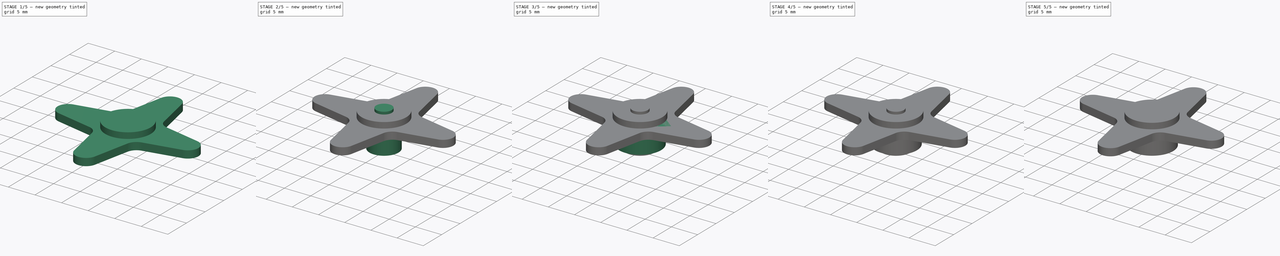
[diagram: build sequence overview — one tinted view per stage of 5, left to right]
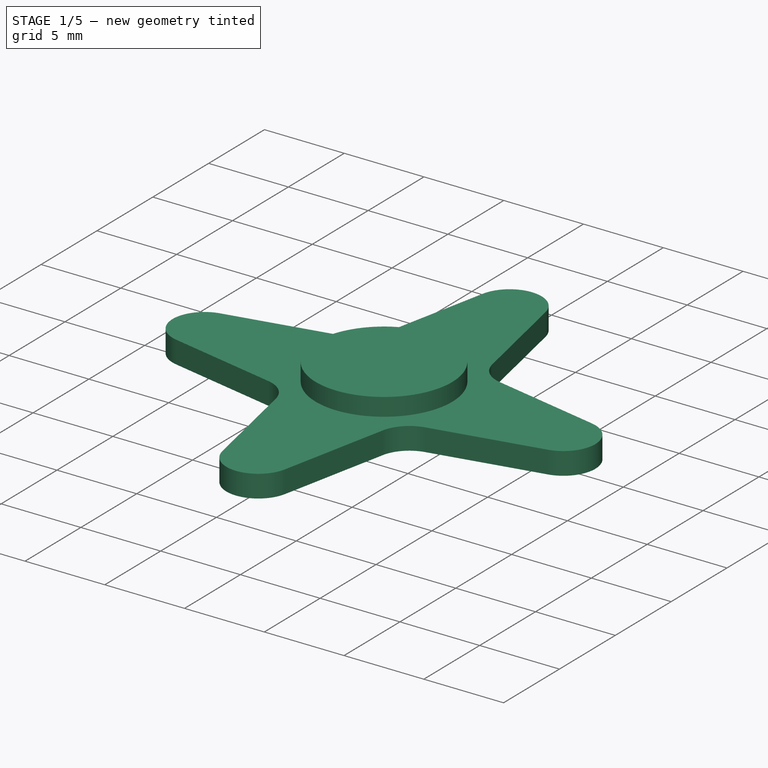
[diagram: stage 1 of 5 — iso view after this stage's code; geometry added in this stage tinted green]
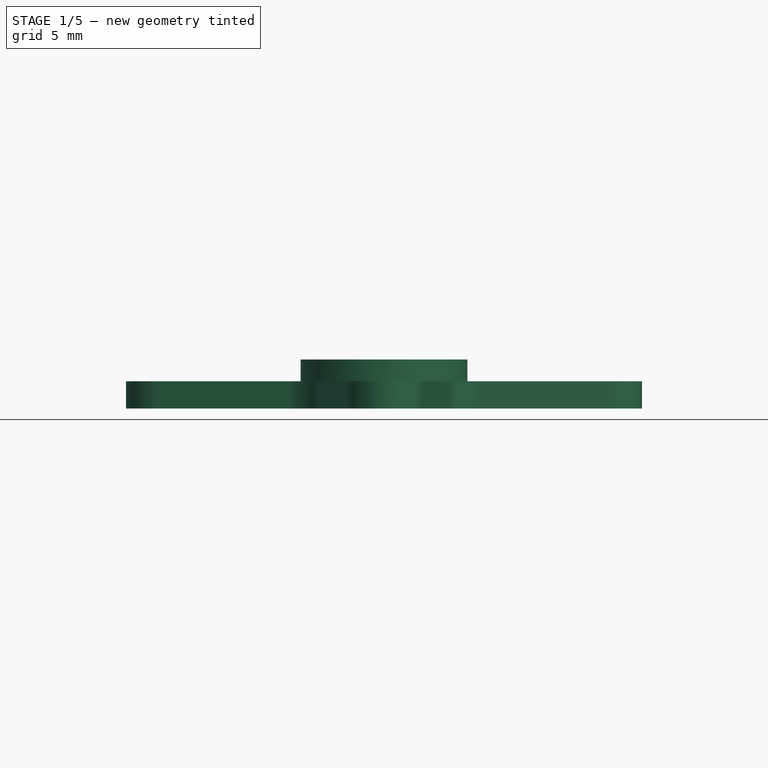
[diagram: stage 1 of 5 — front view after this stage's code; geometry added in this stage tinted green]
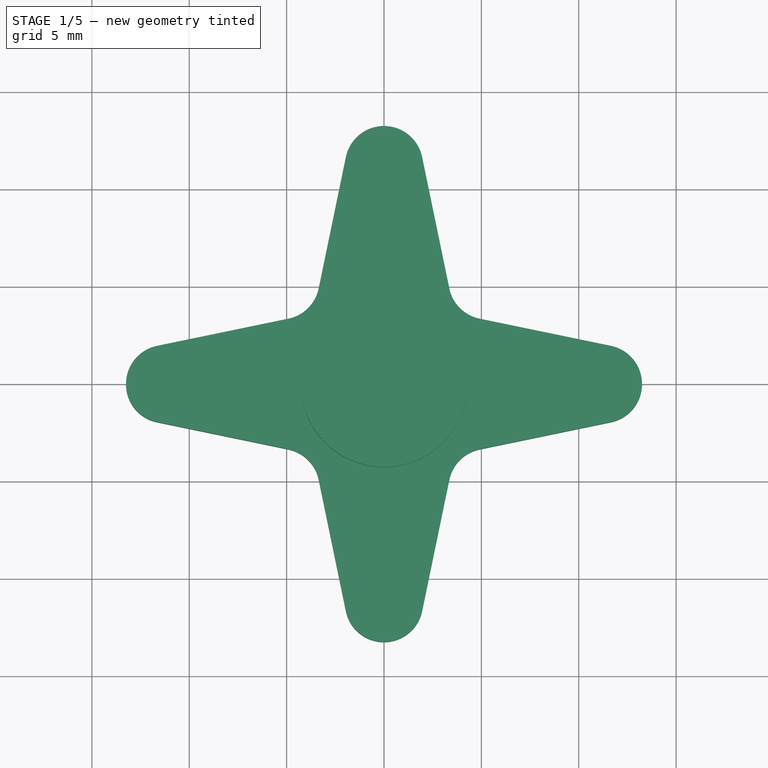
[diagram: stage 1 of 5 — top view after this stage's code; geometry added in this stage tinted green]
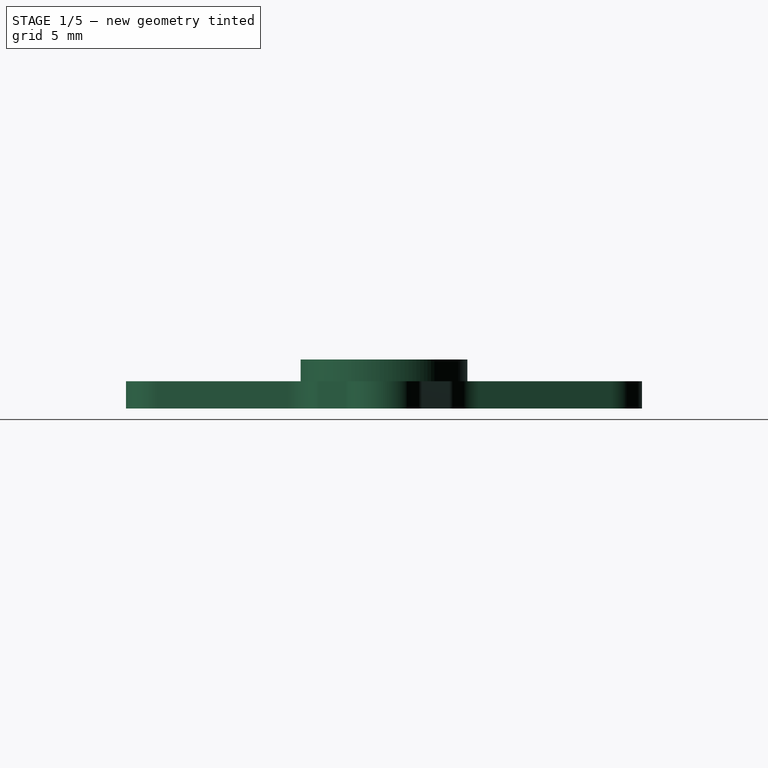
[diagram: stage 1 of 5 — right view after this stage's code; geometry added in this stage tinted green]
FCSTD DOCUMENT  (FreeCAD 0.17R13541 (Git))
Label: Soporte 4 palas servo HD1160A
License: CreativeCommons Attribution
LicenseURL: http://creativecommons.org/licenses/by/4.0/
objects: Part::Cylinder×6, Part::MultiFuse×4, Sketcher::SketchObject×2, PartDesign::Pad×2, PartDesign::Body×2, Part::Cut×2, Part::Feature×2, Part::FeaturePython×1, Part::Fillet×1
note: 24 computed .brp shape members not serialized (recipe doc carries the construction recipe); baked Part::Feature solids carry a one-line shape summary decoded from their .brp

FEATURE [Part::Feature] Fillet001  label="Soporte 4 palas servo HD1160"
  shape: bbox 26 x 26 x 5.52 mm, 39 faces (baked)
FEATURE [Sketcher::SketchObject] Sketch  label="perfil 4 palas + 0.25 extra contorno"
  MapMode = 5
  Support = -> [XY_Plane]
  sketch-geometry (17):
    g0: Circle [constr] CenterX=0 CenterY=0 CenterZ=0 NormalX=0 NormalY=0 NormalZ=1 AngleXU=0 Radius=4.28
    g1: ArcOfCircle CenterX=11.25 CenterY=0 CenterZ=0 NormalX=0 NormalY=0 NormalZ=1 AngleXU=0 Radius=2 StartAngle=4.91647 EndAngle=7.6499
    g2: ArcOfCircle CenterX=0 CenterY=11.25 CenterZ=0 NormalX=0 NormalY=0 NormalZ=1 AngleXU=0 Radius=2 StartAngle=0.204086 EndAngle=2.93751
    g3: ArcOfCircle CenterX=-11.25 CenterY=0 CenterZ=0 NormalX=0 NormalY=0 NormalZ=1 AngleXU=0 Radius=2 StartAngle=1.77488 EndAngle=4.50831
    g4: ArcOfCircle CenterX=0 CenterY=-11.25 CenterZ=0 NormalX=0 NormalY=0 NormalZ=1 AngleXU=0 Radius=2 StartAngle=3.34567 EndAngle=6.0791
    g5: LineSegment StartX=1.95849 StartY=11.6553 StartZ=0 EndX=3.35492 EndY=4.90808 EndZ=0
    g6: LineSegment StartX=11.6553 StartY=1.95849 StartZ=0 EndX=4.90808 EndY=3.35492 EndZ=0
    g7: LineSegment StartX=-3.35492 StartY=4.90808 StartZ=0 EndX=-1.95849 EndY=11.6553 EndZ=0
    g8: LineSegment StartX=-4.90808 StartY=3.35492 StartZ=0 EndX=-11.6553 EndY=1.9585 EndZ=0
    g9: LineSegment StartX=-11.6553 StartY=-1.9585 StartZ=0 EndX=-4.90808 EndY=-3.35492 EndZ=0
    g10: LineSegment StartX=-1.9585 StartY=-11.6553 StartZ=0 EndX=-3.35492 EndY=-4.90808 EndZ=0
    g11: LineSegment StartX=1.9585 StartY=-11.6553 StartZ=0 EndX=3.35492 EndY=-4.90808 EndZ=0
    g12: LineSegment StartX=11.6553 StartY=-1.9585 StartZ=0 EndX=4.90808 EndY=-3.35492 EndZ=0
    g13: ArcOfCircle CenterX=-5.31341 CenterY=5.31341 CenterZ=0 NormalX=0 NormalY=0 NormalZ=1 AngleXU=0 Radius=2 StartAngle=4.91647 EndAngle=6.0791
    g14: ArcOfCircle CenterX=5.31341 CenterY=5.31341 CenterZ=0 NormalX=0 NormalY=0 NormalZ=1 AngleXU=0 Radius=2 StartAngle=3.34567 EndAngle=4.50831
    g15: ArcOfCircle CenterX=5.31341 CenterY=-5.31341 CenterZ=0 NormalX=0 NormalY=0 NormalZ=1 AngleXU=0 Radius=2 StartAngle=1.77488 EndAngle=2.93751
    g16: ArcOfCircle CenterX=-5.31341 CenterY=-5.31341 CenterZ=0 NormalX=0 NormalY=0 NormalZ=1 AngleXU=0 Radius=2 StartAngle=0.20408 EndAngle=1.36672
  constraints (48):
    c: Coincident(g0,g-1)
    c: PointOnObject(g1,g-1)
    c: PointOnObject(g2,g-2)
    c: PointOnObject(g3,g-1)
    c: DistanceX(g-1,g1) = 11.25
    c: Radius(g1) = 2
    c: Radius(g0) = 4.28
    c: Equal(g1,g2)
    c: Equal(g2,g3)
    c: Equal(g3,g4)
    c: Symmetric(g1,g3,g-2)
    c: Symmetric(g2,g4,g-1)
    c: DistanceY(g-1,g2) = 11.25
    c: Tangent(g5,g0)
    c: Tangent(g5,g2)
    c: Tangent(g6,g1)
    c: Tangent(g6,g0)
    c: Tangent(g7,g2)
    c: Tangent(g7,g0)
    c: Coincident(g2,g5)
    c: Coincident(g2,g7)
    c: Tangent(g8,g3)
    c: Tangent(g8,g0)
    c: PointOnObject(g9,g3)
    c: Tangent(g9,g0)
    c: Tangent(g3,g9) = -1.5708
    c: PointOnObject(g10,g4)
    c: Tangent(g10,g0)
    c: Tangent(g11,g0)
    c: Tangent(g12,g0)
    c: Tangent(g12,g1)
    c: Coincident(g1,g6)
    c: Tangent(g1,g12) = 1.5708
    c: Tangent(g4,g10) = 1.5708
    c: Tangent(g4,g11) = -1.5708
    c: Tangent(g3,g8) = -1.5708
    c: Tangent(g8,g13) = 1.5708
    c: Tangent(g7,g13) = -1.5708
    c: Tangent(g5,g14) = -1.5708
    c: Tangent(g6,g14) = 1.5708
    c: Tangent(g11,g15) = 1.5708
    c: Tangent(g12,g15) = -1.5708
    c: Tangent(g10,g16) = -1.5708
    c: Tangent(g9,g16) = 1.5708
    c: Radius(g13) = 2
    c: Radius(g14) = 2
    c: Radius(g16) = 2
    c: Radius(g15) = 2
FEATURE [PartDesign::Pad] Pad001  label="Extrusion 4 palas"
  Length = 1.4
  Length2 = 100
  Profile = -> Sketch
  Type = 0
FEATURE [PartDesign::Body] Body001  label="Soporte sin detalles"
  Group = -> [Sketch,Pad001]
  Origin = -> Origin001
  Tip = -> Pad001
FEATURE [Part::Cylinder] Cylinder005  label="Cilindro superior"
  Angle = 360
  AttacherType = Attacher::AttachEngine3D
  Height = 1.12
  Placement = pos=(0,0,1.4) rot=(0,0,1;0rad)
  Radius = 4.28
FEATURE [Part::MultiFuse] Fusion003  label="Fusion soporte 4 palas para hacer huecos master"
  Refine = true
  Shapes = -> [Pad001,Cylinder005]
FEATURE [Part::Feature] Fusion003001  label="Fusion soporte 4 palas para hacer huecos"
  shape: bbox 26.5 x 26.5 x 2.52 mm, 20 faces (baked)
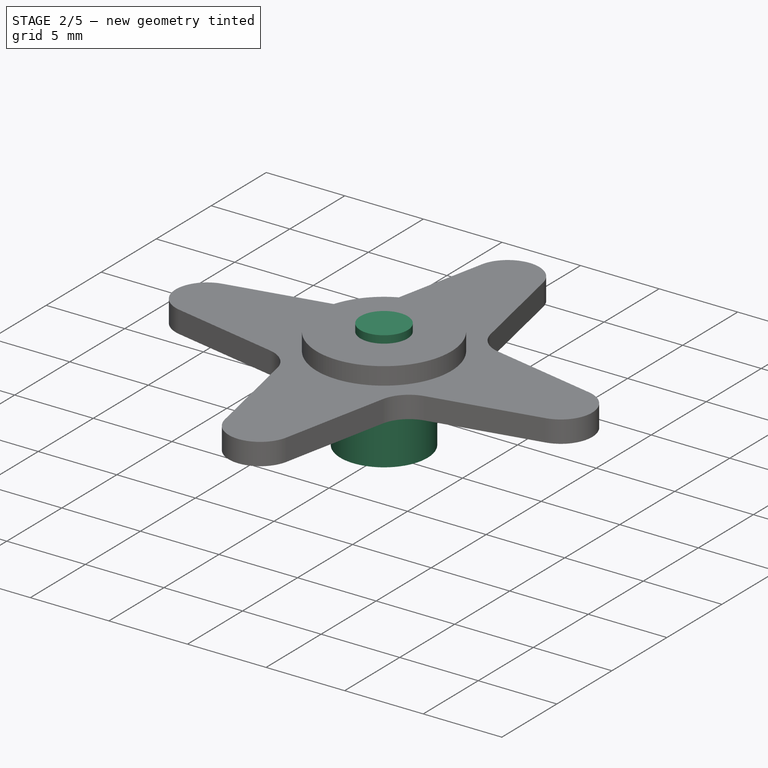
[diagram: stage 2 of 5 — iso view after this stage's code; geometry added in this stage tinted green]
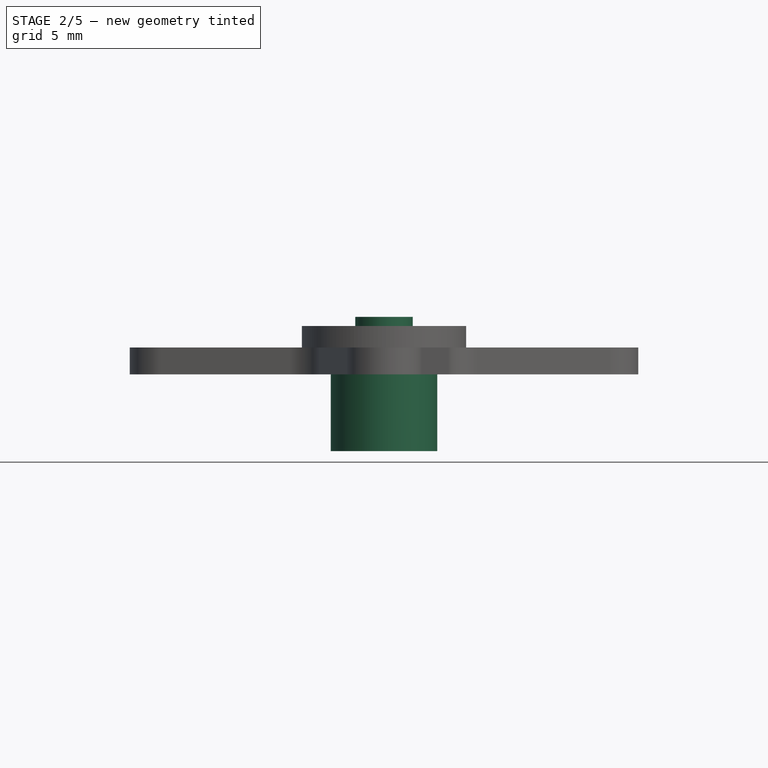
[diagram: stage 2 of 5 — front view after this stage's code; geometry added in this stage tinted green]
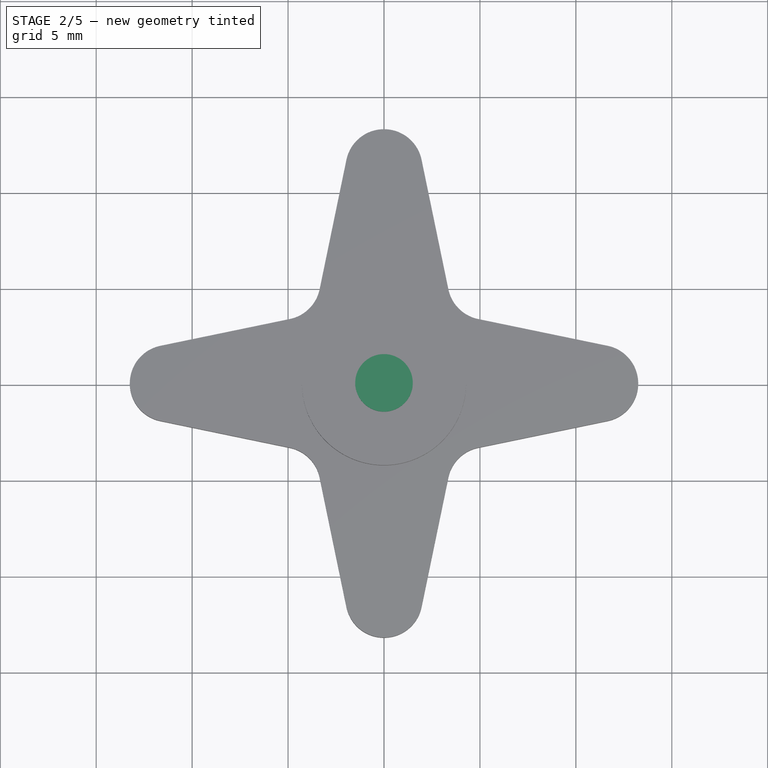
[diagram: stage 2 of 5 — top view after this stage's code; geometry added in this stage tinted green]
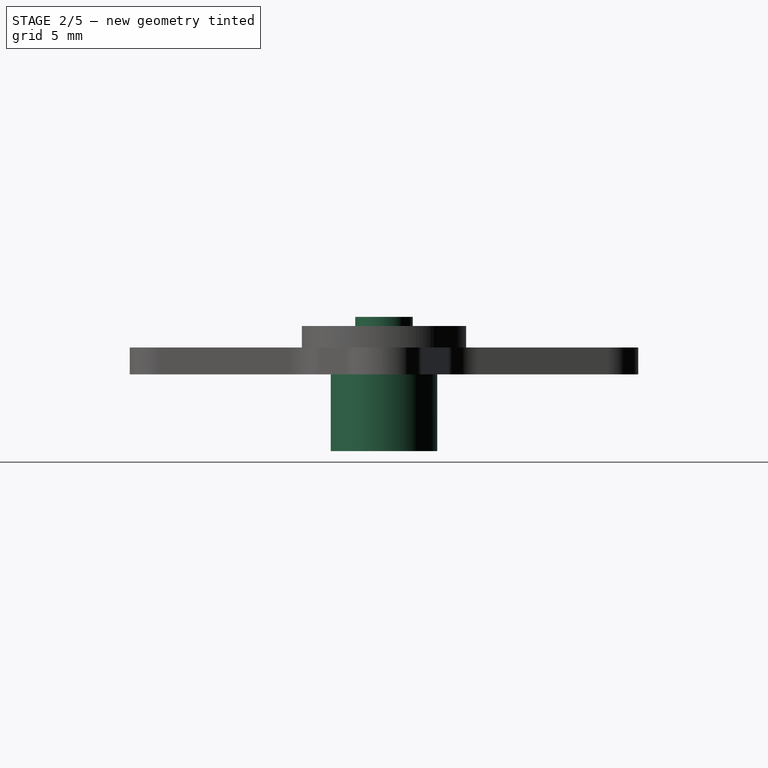
[diagram: stage 2 of 5 — right view after this stage's code; geometry added in this stage tinted green]
FEATURE [Part::Cylinder] Cylinder001  label="Cilindro int superior"
  Angle = 360
  AttacherType = Attacher::AttachEngine3D
  Height = 1.6
  Placement = pos=(0,0,0.87) rot=(0,0,1;0rad)
  Radius = 3.525
FEATURE [Part::Cylinder] Cylinder003  label="Cilindro int inferior"
  Angle = 360
  AttacherType = Attacher::AttachEngine3D
  Height = 4
  Placement = pos=(0,0,-4) rot=(0,0,1;0rad)
  Radius = 2.775
FEATURE [Part::Cylinder] Cylinder004  label="Hueco central 3 mm"
  Angle = 360
  AttacherType = Attacher::AttachEngine3D
  Height = 5
  Placement = pos=(0,0,-2) rot=(0,0,1;0rad)
  Radius = 1.5
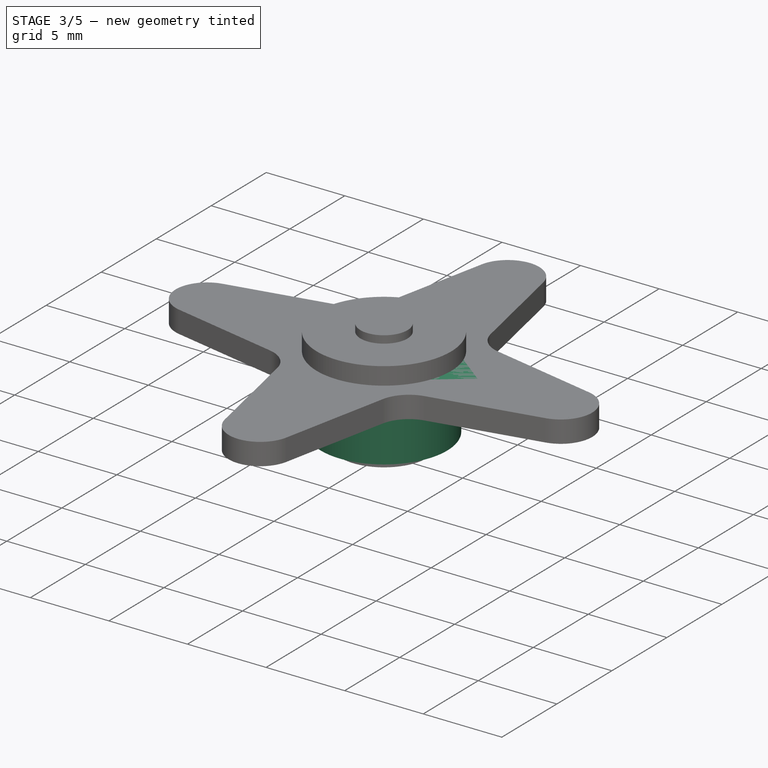
[diagram: stage 3 of 5 — iso view after this stage's code; geometry added in this stage tinted green]
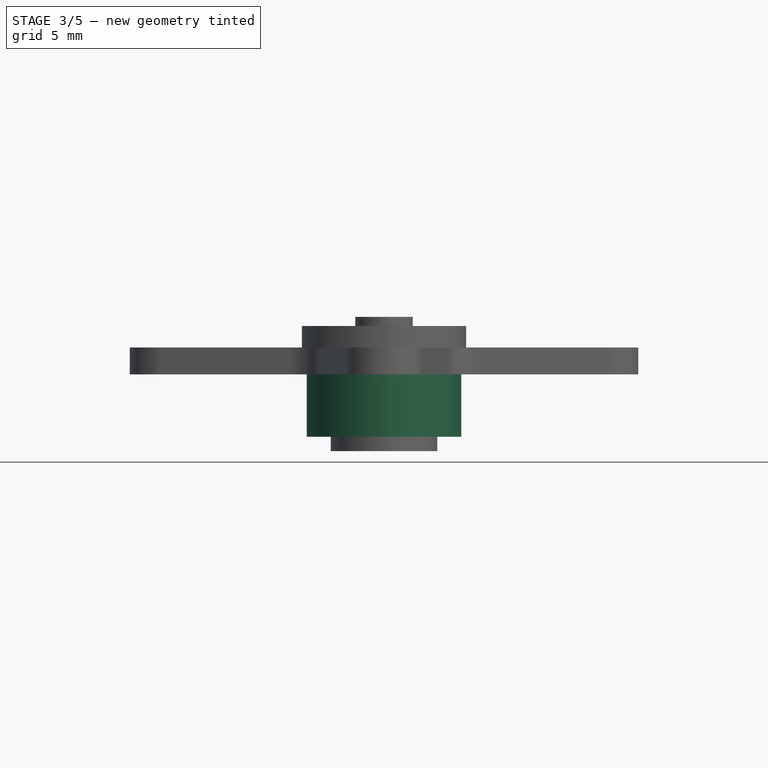
[diagram: stage 3 of 5 — front view after this stage's code; geometry added in this stage tinted green]
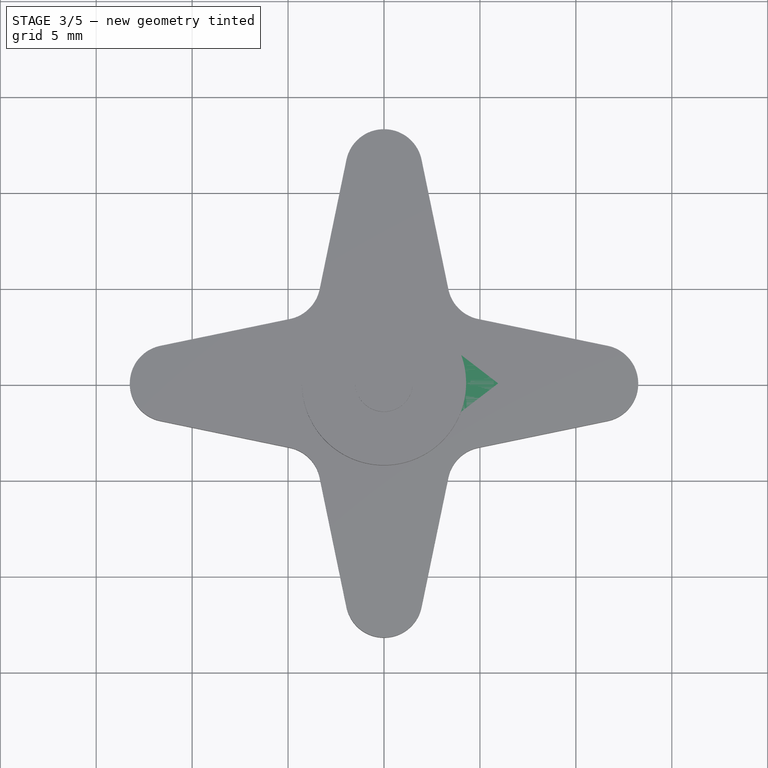
[diagram: stage 3 of 5 — top view after this stage's code; geometry added in this stage tinted green]
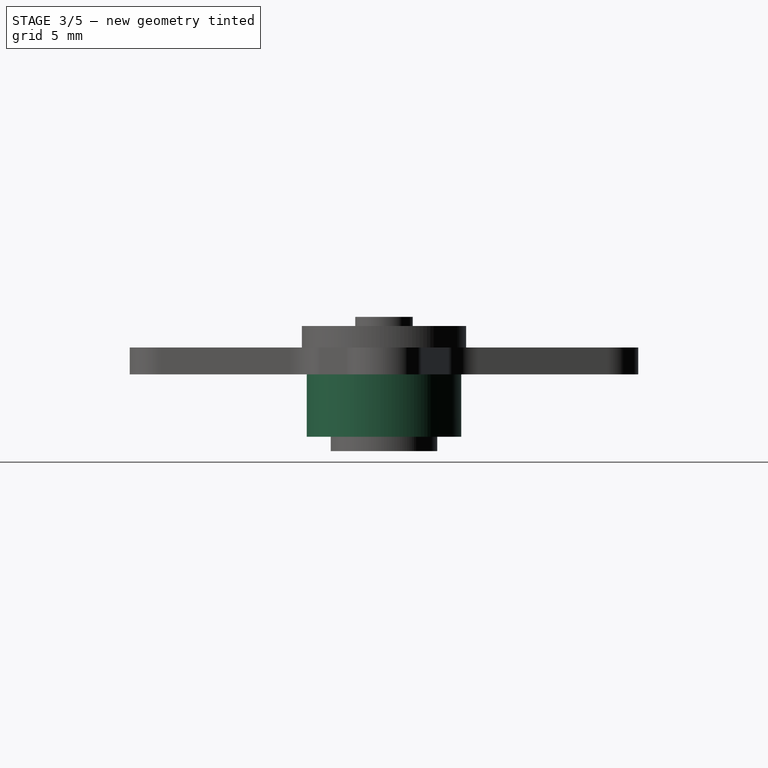
[diagram: stage 3 of 5 — right view after this stage's code; geometry added in this stage tinted green]
FEATURE [Sketcher::SketchObject] Sketch001  label="Perimetro aleta 13 mm"
  AttachmentOffset = pos=(0,0,0) rot=(1,0,0;-1.5708rad)
  MapMode = 5
  Support = -> [XZ_Plane]
  sketch-geometry (7):
    g0: ArcOfCircle CenterX=0 CenterY=0 CenterZ=0 NormalX=0 NormalY=0 NormalZ=1 AngleXU=0 Radius=4.025 StartAngle=1.36717 EndAngle=4.91602
    g1: ArcOfCircle CenterX=11.25 CenterY=0 CenterZ=0 NormalX=0 NormalY=0 NormalZ=1 AngleXU=0 Radius=1.75 StartAngle=4.91602 EndAngle=7.65036
    g2: LineSegment StartX=0.813944 StartY=3.94184 StartZ=0 EndX=11.6039 EndY=1.71384 EndZ=0
    g3: LineSegment StartX=0.813944 StartY=-3.94184 StartZ=0 EndX=11.6039 EndY=-1.71384 EndZ=0
    g4: Circle CenterX=8.85 CenterY=0 CenterZ=0 NormalX=0 NormalY=0 NormalZ=1 AngleXU=0 Radius=0.5
    g5: Circle CenterX=6.45 CenterY=0 CenterZ=0 NormalX=0 NormalY=0 NormalZ=1 AngleXU=0 Radius=0.5
    g6: Circle CenterX=11.25 CenterY=0 CenterZ=0 NormalX=0 NormalY=0 NormalZ=1 AngleXU=0 Radius=0.5
  constraints (17):
    c: Coincident(g0,g-1)
    c: PointOnObject(g1,g-1)
    c: Radius(g0) = 4.025
    c: Radius(g1) = 1.75
    c: DistanceX(g-1,g1) = 11.25
    c: Tangent(g0,g2) = 1.5708
    c: Tangent(g0,g3) = -1.5708
    c: Tangent(g1,g2) = 1.5708
    c: Tangent(g1,g3) = -1.5708
    c: PointOnObject(g5,g-1)
    c: PointOnObject(g4,g-1)
    c: DistanceX(g4,g1) = 2.4
    c: DistanceX(g5,g4) = 2.4
    c: Coincident(g6,g1)
    c: Radius(g6) = 0.5
    c: Radius(g4) = 0.5
    c: Radius(g5) = 0.5
FEATURE [PartDesign::Pad] Pad
  Length = 1.4
  Length2 = 100
  Placement = pos=(0,0,0) rot=(1,0,0;1.5708rad)
  Profile = -> Sketch001
  Type = 0
FEATURE [Part::Cylinder] Cylinder  label="Cilindro ext superior"
  Angle = 360
  AttacherType = Attacher::AttachEngine3D
  Height = 0.87
  Placement = pos=(0,0,1.4) rot=(0,0,1;0rad)
  Radius = 4.025
FEATURE [Part::Cylinder] Cylinder002  label="Cilindro ext inferior"
  Angle = 360
  AttacherType = Attacher::AttachEngine3D
  Height = 3.25
  Placement = pos=(0,0,-3.25) rot=(0,0,1;0rad)
  Radius = 4.025
FEATURE [Part::MultiFuse] Fusion002  label="Fusion interiores"
  Refine = true
  Shapes = -> [Cylinder003,Cylinder001]
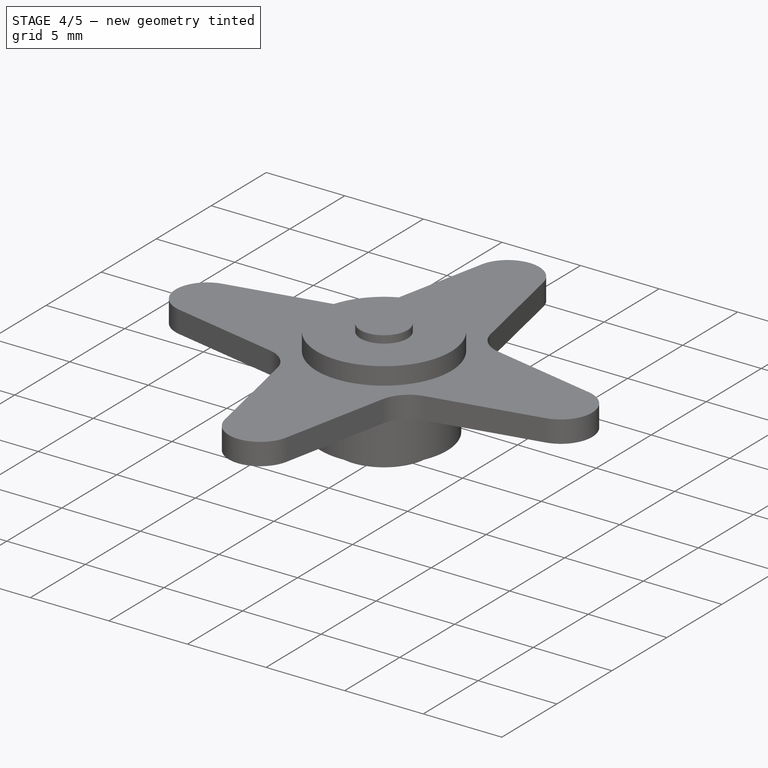
[diagram: stage 4 of 5 — iso view after this stage's code; geometry added in this stage tinted green]
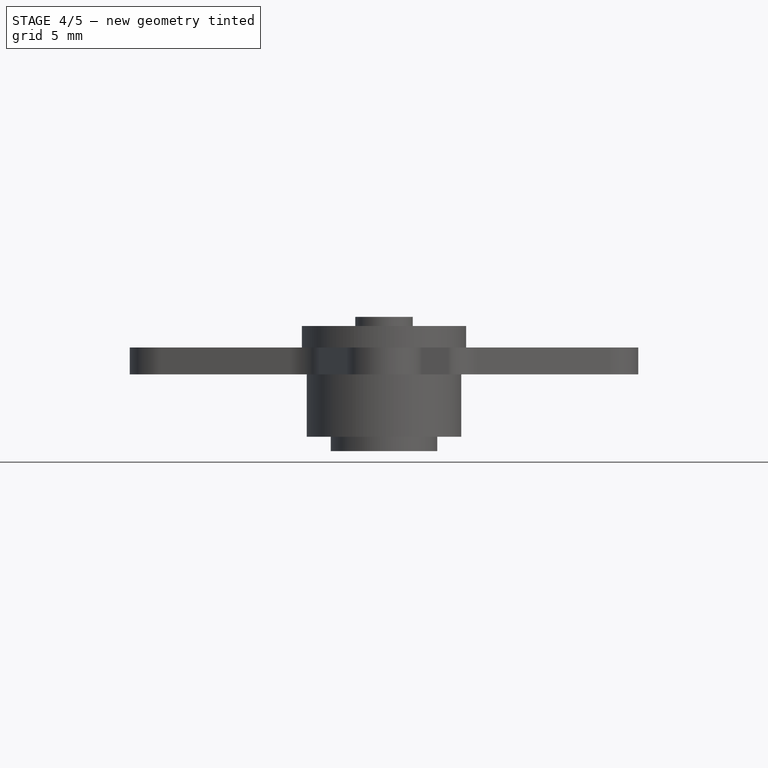
[diagram: stage 4 of 5 — front view after this stage's code; geometry added in this stage tinted green]
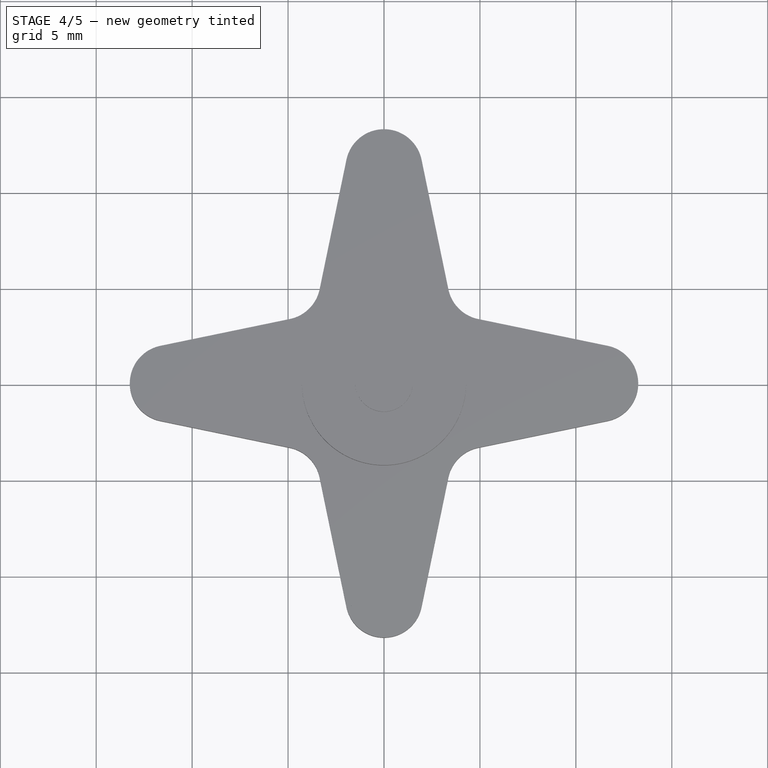
[diagram: stage 4 of 5 — top view after this stage's code; geometry added in this stage tinted green]
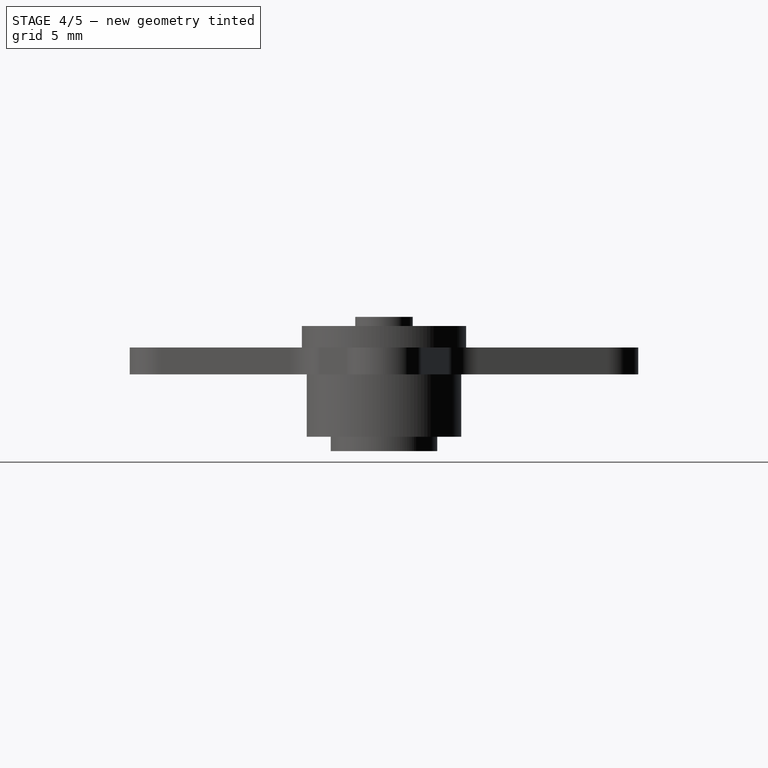
[diagram: stage 4 of 5 — right view after this stage's code; geometry added in this stage tinted green]
FEATURE [PartDesign::Body] Body  label="Soporte"
  Group = -> [Sketch001,Pad]
  Origin = -> Origin
  Tip = -> Pad
FEATURE [Part::FeaturePython] Array  label="Array 4 palas"  # Draft array (typed FeaturePython)
  Angle = 360
  ArrayType = 1
  Axis = (0,0,1)
  Base = -> Pad
  Center = (0,0,0)
  Fuse = false
  IntervalAxis = (0,0,0)
  IntervalX = (1,0,0)
  IntervalY = (0,1,0)
  IntervalZ = (0,0,0)
  NumberPolar = 4
  NumberX = 2
  NumberY = 2
  NumberZ = 1
FEATURE [Part::MultiFuse] Fusion  label="Fusion 4 palas"
  Refine = true
  Shapes = -> [Array]
FEATURE [Part::MultiFuse] Fusion001  label="Fusion palas + cilindros ext"
  Refine = true
  Shapes = -> [Fusion,Cylinder,Cylinder002]
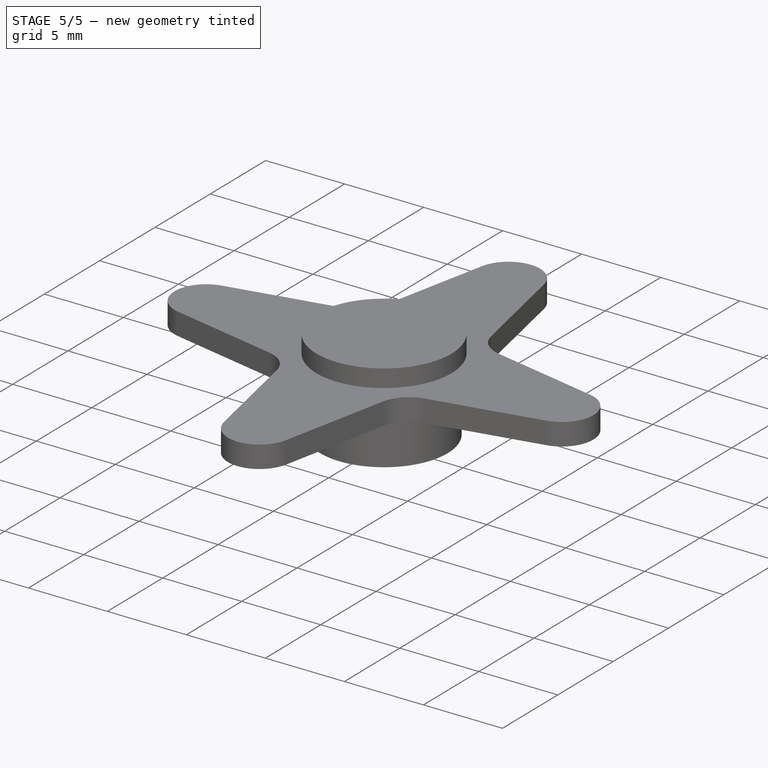
[diagram: stage 5 of 5 — iso view after this stage's code; geometry added in this stage tinted green]
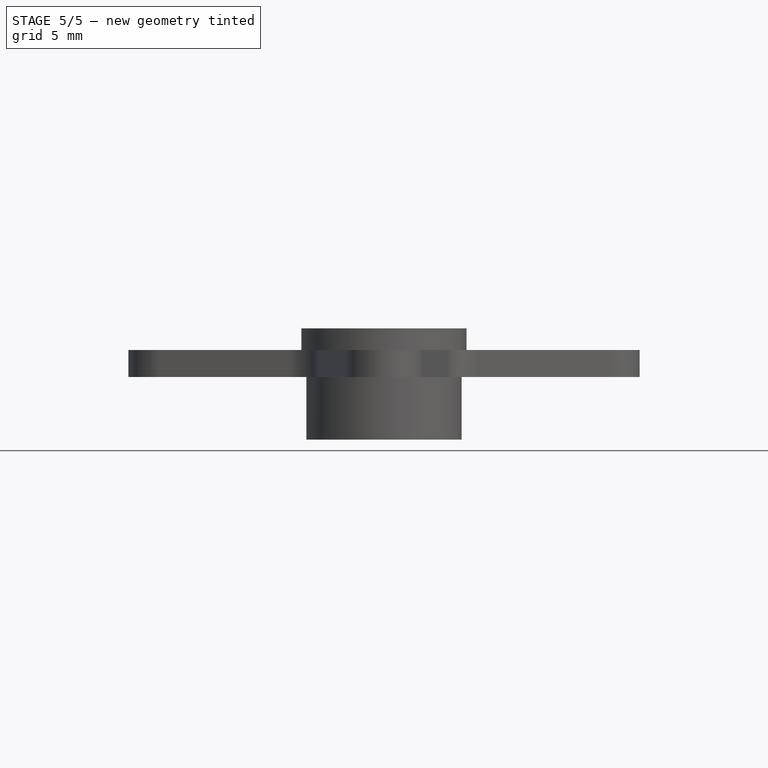
[diagram: stage 5 of 5 — front view after this stage's code; geometry added in this stage tinted green]
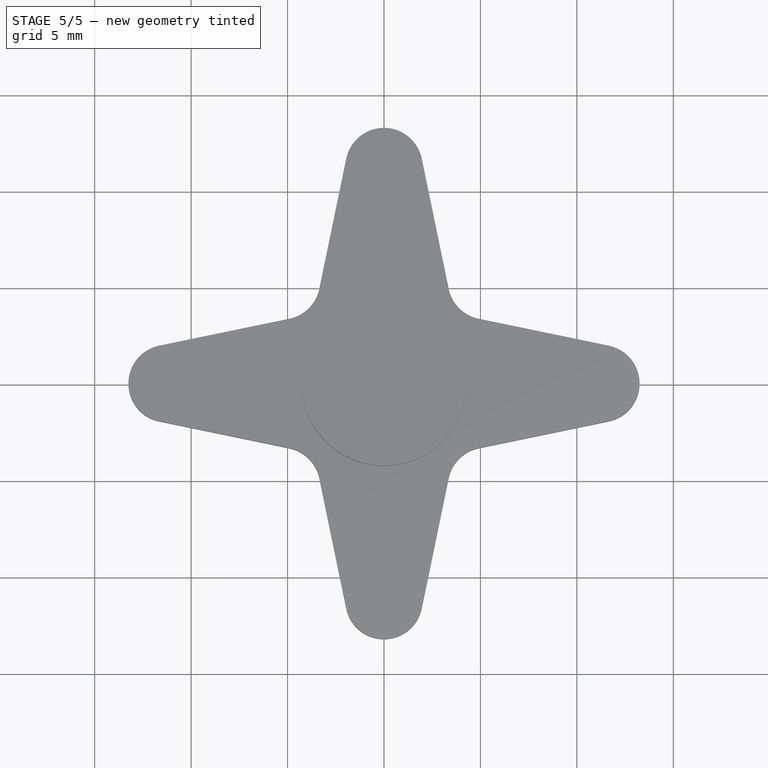
[diagram: stage 5 of 5 — top view after this stage's code; geometry added in this stage tinted green]
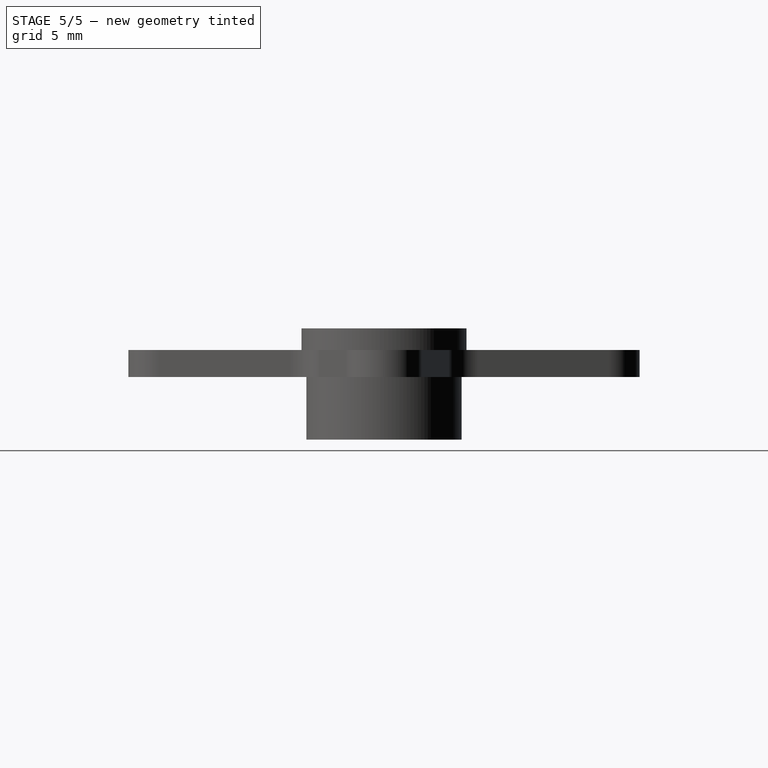
[diagram: stage 5 of 5 — right view after this stage's code; geometry added in this stage tinted green]
FEATURE [Part::Cut] Cut  label="Soporte 4 palas sin taladro"
  Base = -> Fusion001
  Refine = true
  Tool = -> Fusion002
FEATURE [Part::Cut] Cut001  label="Soporte con hueco central 3 mm"
  Base = -> Cut
  Refine = true
  Tool = -> Cylinder004
FEATURE [Part::Fillet] Fillet  label="Soporte 4 palas servo HD1160A master"
  Base = -> Cut001
  Edges = 4 edges r=2: [Edge34,Edge42,Edge44,Edge54]
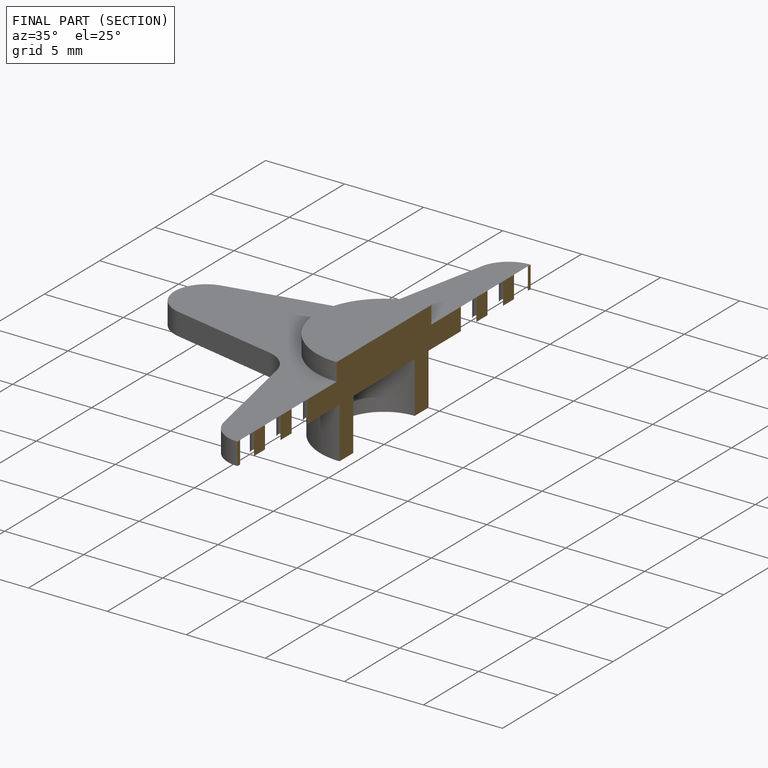
[diagram: finished part — half-section view (interior)]
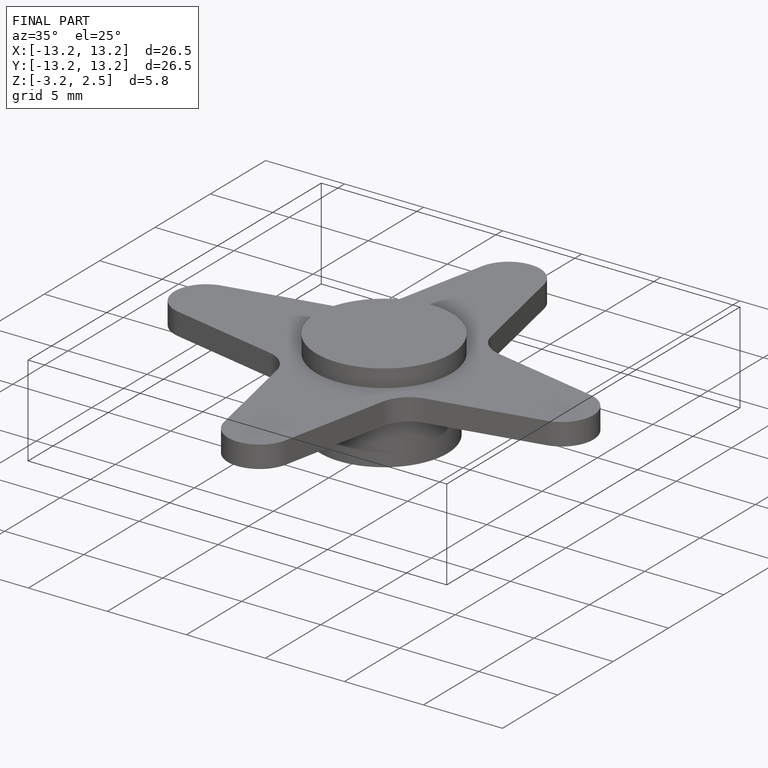
[diagram: finished part — iso view with bounding-box wireframe]
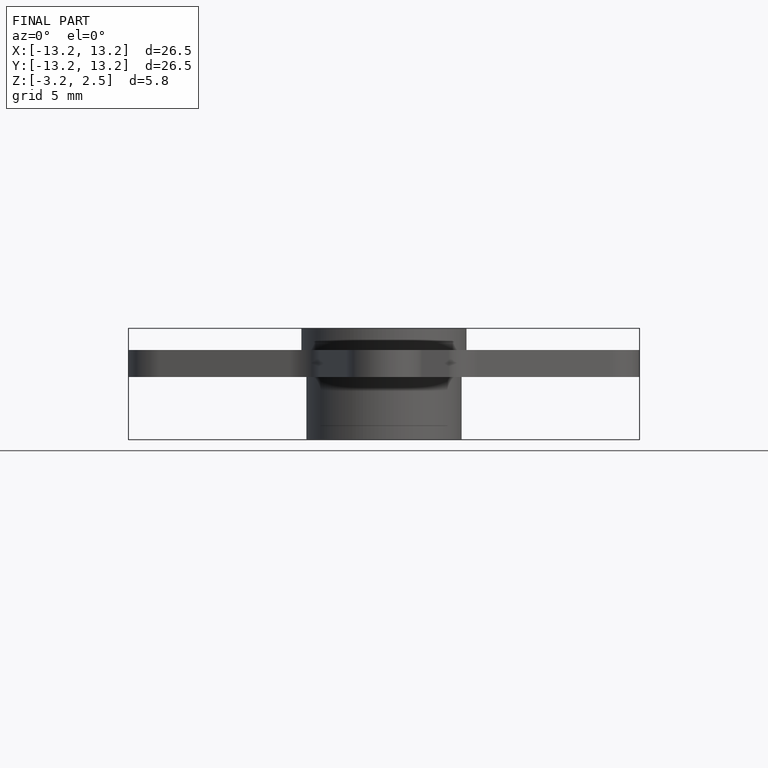
[diagram: finished part — front view with bounding-box wireframe]
